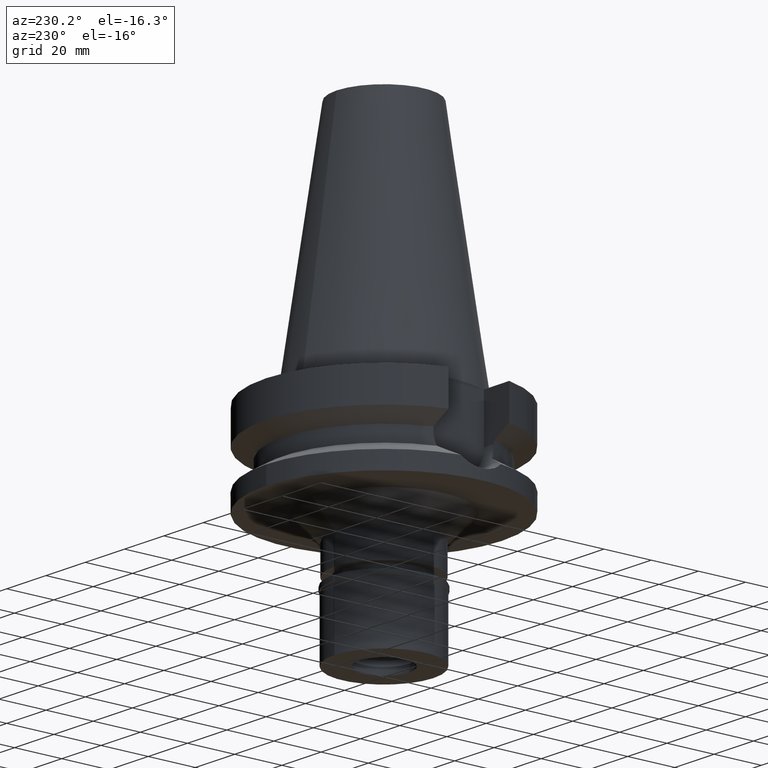
[diagram: clean part render]
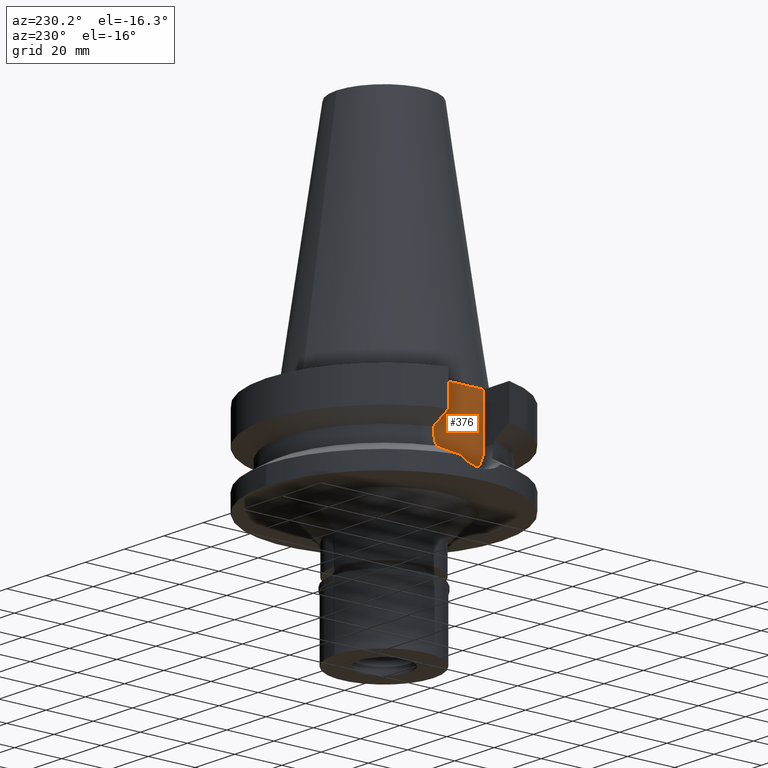
[diagram: same view with one face highlighted and labeled with its STEP entity id]
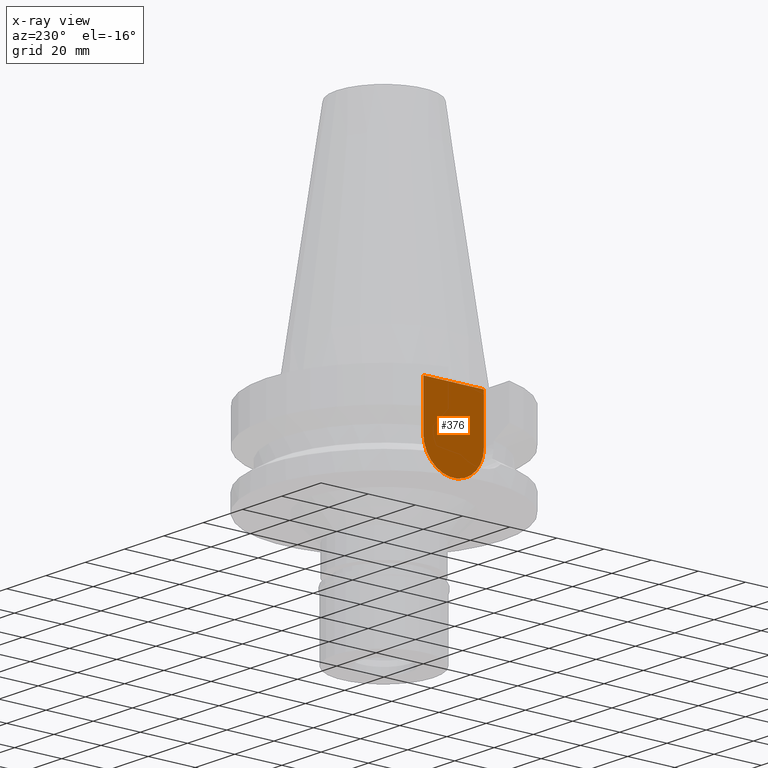
[diagram: x-ray of the same camera — body ghosted, the highlighted face saturated]
A machine part, auxiliary view. The second image highlights one B-rep face of the part: STEP entity #376.
The next image is the same camera in x-ray: the body ghosted, the highlighted face saturated — about 0% of this face is hidden behind the body in this view.
In plain terms, the highlighted planar face has unit normal (-1, 0, 0).
Its self-contained STEP definition (entity closure, byte-faithful):
#50 = EDGE_CURVE ( 'NONE', #2505, #1549, #150, .T. ) ;
#150 = LINE ( 'NONE', #1108, #310 ) ;
#195 = CARTESIAN_POINT ( 'NONE',  ( -35.39999999999999858, -12.84999999999999964, -1.500000000000000000 ) ) ;
#298 = DIRECTION ( 'NONE',  ( 1.000000000000000000, 0.0000000000000000000, 0.0000000000000000000 ) ) ;
#310 = VECTOR ( 'NONE', #1363, 1000.000000000000000 ) ;
#336 = CARTESIAN_POINT ( 'NONE',  ( -35.39999999999999858, 12.84999999999999964, -1.500000000000000000 ) ) ;
#376 = ADVANCED_FACE ( 'NONE', ( #378 ), #2993, .T. ) ;
#378 = FACE_OUTER_BOUND ( 'NONE', #1382, .T. ) ;
#455 = ORIENTED_EDGE ( 'NONE', *, *, #1434, .T. ) ;
#532 = VECTOR ( 'NONE', #1521, 1000.000000000000000 ) ;
#608 = CARTESIAN_POINT ( 'NONE',  ( -35.39999999999999858, 2.015768631397000034E-14, 0.0000000000000000000 ) ) ;
#681 = AXIS2_PLACEMENT_3D ( 'NONE', #1075, #298, #2690 ) ;
#747 = EDGE_CURVE ( 'NONE', #1729, #2505, #1581, .T. ) ;
#1075 = CARTESIAN_POINT ( 'NONE',  ( -35.39999999999999858, 1.497743035356999952E-14, -21.14999999999999858 ) ) ;
#1102 = DIRECTION ( 'NONE',  ( -1.000000000000000000, 0.0000000000000000000, 0.0000000000000000000 ) ) ;
#1108 = CARTESIAN_POINT ( 'NONE',  ( -35.39999999999999858, 12.84999999999999964, -21.14999999999999858 ) ) ;
#1140 = VECTOR ( 'NONE', #2189, 1000.000000000000000 ) ;
#1259 = ORIENTED_EDGE ( 'NONE', *, *, #50, .F. ) ;
#1277 = EDGE_CURVE ( 'NONE', #2478, #1729, #1747, .T. ) ;
#1363 = DIRECTION ( 'NONE',  ( 0.0000000000000000000, 0.0000000000000000000, 1.000000000000000000 ) ) ;
#1382 = EDGE_LOOP ( 'NONE', ( #1259, #2898, #2098, #455 ) ) ;
#1434 = EDGE_CURVE ( 'NONE', #2478, #1549, #2163, .T. ) ;
#1521 = DIRECTION ( 'NONE',  ( 0.0000000000000000000, 0.0000000000000000000, -1.000000000000000000 ) ) ;
#1549 = VERTEX_POINT ( 'NONE', #336 ) ;
#1581 = CIRCLE ( 'NONE', #681, 12.84999999999999964 ) ;
#1729 = VERTEX_POINT ( 'NONE', #2432 ) ;
#1747 = LINE ( 'NONE', #2680, #532 ) ;
#1827 = DIRECTION ( 'NONE',  ( 0.0000000000000000000, 0.0000000000000000000, 1.000000000000000000 ) ) ;
#1888 = CARTESIAN_POINT ( 'NONE',  ( -35.39999999999999858, 12.84999999999999964, -21.14999999999999858 ) ) ;
#1995 = CARTESIAN_POINT ( 'NONE',  ( -35.39999999999999858, -12.84999999999999964, -1.500000000000000000 ) ) ;
#2098 = ORIENTED_EDGE ( 'NONE', *, *, #1277, .F. ) ;
#2163 = LINE ( 'NONE', #1995, #1140 ) ;
#2189 = DIRECTION ( 'NONE',  ( 0.0000000000000000000, 1.000000000000000000, 0.0000000000000000000 ) ) ;
#2432 = CARTESIAN_POINT ( 'NONE',  ( -35.39999999999999858, -12.84999999999999964, -21.14999999999999858 ) ) ;
#2478 = VERTEX_POINT ( 'NONE', #195 ) ;
#2504 = AXIS2_PLACEMENT_3D ( 'NONE', #608, #1102, #1827 ) ;
#2505 = VERTEX_POINT ( 'NONE', #1888 ) ;
#2680 = CARTESIAN_POINT ( 'NONE',  ( -35.39999999999999858, -12.84999999999999964, -1.500000000000000000 ) ) ;
#2690 = DIRECTION ( 'NONE',  ( 0.0000000000000000000, -1.000000000000000000, 1.133982661338924476E-14 ) ) ;
#2898 = ORIENTED_EDGE ( 'NONE', *, *, #747, .F. ) ;
#2993 = PLANE ( 'NONE',  #2504 ) ;